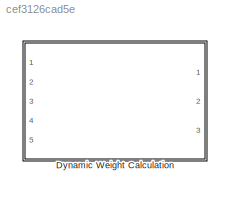
MODEL slx_cef3126cad5e
KIND model
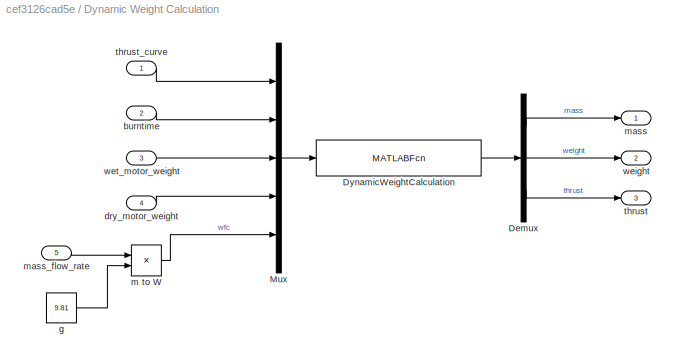
BLOCK [SubSystem] Dynamic Weight Calculation
  Ports = [5, 3]
  RequestExecContextInheritance = off
BLOCK [Demux] Dynamic Weight Calculation/Demux
  DisplayOption = bar
  Outputs = [1 1 1]
  Ports = [1, 3]
BLOCK [MATLABFcn] Dynamic Weight Calculation/DynamicWeightCalculation
  MATLABFcn = DynamicWeightCalculation
  Ports = [1, 1]
BLOCK [Mux] Dynamic Weight Calculation/Mux
  DisplayOption = bar
  Inputs = 5
  Ports = [5, 1]
BLOCK [Inport] Dynamic Weight Calculation/burntime
  IconDisplay = Port number
  Port = 2
BLOCK [Inport] Dynamic Weight Calculation/dry_motor_weight
  IconDisplay = Port number
  Port = 4
BLOCK [Constant] Dynamic Weight Calculation/g
  Value = 9.81
BLOCK [Product] Dynamic Weight Calculation/m to W
  InputSameDT = off
  OutDataTypeStr = Inherit: Inherit via internal rule
  Ports = [2, 1]
  RndMeth = Floor
  SaturateOnIntegerOverflow = off
BLOCK [Outport] Dynamic Weight Calculation/mass
  IconDisplay = Port number
BLOCK [Inport] Dynamic Weight Calculation/mass_flow_rate
  IconDisplay = Port number
  Port = 5
BLOCK [Outport] Dynamic Weight Calculation/thrust
  IconDisplay = Port number
  Port = 3
BLOCK [Inport] Dynamic Weight Calculation/thrust_curve
  IconDisplay = Port number
BLOCK [Outport] Dynamic Weight Calculation/weight
  IconDisplay = Port number
  Port = 2
BLOCK [Inport] Dynamic Weight Calculation/wet_motor_weight
  IconDisplay = Port number
  Port = 3
LINE Dynamic Weight Calculation/Demux:1 -> Dynamic Weight Calculation/mass:1
LINE Dynamic Weight Calculation/Demux:2 -> Dynamic Weight Calculation/weight:1
LINE Dynamic Weight Calculation/Demux:3 -> Dynamic Weight Calculation/thrust:1
LINE Dynamic Weight Calculation/DynamicWeightCalculation:1 -> Dynamic Weight Calculation/Demux:1
LINE Dynamic Weight Calculation/Mux:1 -> Dynamic Weight Calculation/DynamicWeightCalculation:1
LINE Dynamic Weight Calculation/burntime:1 -> Dynamic Weight Calculation/Mux:2
LINE Dynamic Weight Calculation/dry_motor_weight:1 -> Dynamic Weight Calculation/Mux:4
LINE Dynamic Weight Calculation/g:1 -> Dynamic Weight Calculation/m to W:2
LINE Dynamic Weight Calculation/m to W:1 -> Dynamic Weight Calculation/Mux:5
LINE Dynamic Weight Calculation/mass_flow_rate:1 -> Dynamic Weight Calculation/m to W:1
LINE Dynamic Weight Calculation/thrust_curve:1 -> Dynamic Weight Calculation/Mux:1
LINE Dynamic Weight Calculation/wet_motor_weight:1 -> Dynamic Weight Calculation/Mux:3
